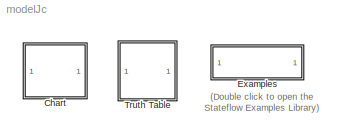
MODEL modelJc
KIND library
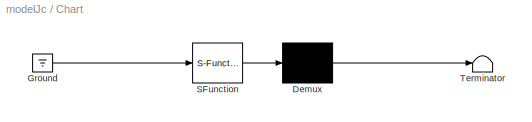
BLOCK [SubSystem] Chart
  FunctionWithSeparateData = off
  MaskDescription = Stateflow diagram
  MaskDisplay = plot(sf('Private','sfblk','xIcon'),sf('Private','sfblk','yIcon'));text(0.5,0,sf('Private', 'sfblk', 'tIcon'),'HorizontalAl','Center','VerticalAl','Bottom');
  MaskHideContents = off
  MaskIconFrame = off
  MaskIconOpaque = on
  MaskIconRotate = none
  MaskIconUnits = autoscale
  MaskPortRotate = default
  MaskSelfModifiable = on
  MaskType = Stateflow
  MinAlgLoopOccurrences = off
  Opaque = off
  PermitHierarchicalResolution = ExplicitOnly
  Ports = []
  PropExecContextOutsideSubsystem = off
  RTWSystemCode = Auto
  RequestExecContextInheritance = off
  SID = 1
  TreatAsAtomicUnit = on
BLOCK [Demux] Chart/ Demux 
  Outputs = 1
  Ports = [1, 1]
  SID = 10
BLOCK [Ground] Chart/ Ground 
  SID = 11
BLOCK [S-Function] Chart/ SFunction 
  EnableBusSupport = off
  FunctionName = sf_sfun
  PortCounts = [1 1]
  Ports = [1, 1]
  SID = 9
  Tag = Stateflow S-Function modelJc 1
BLOCK [Terminator] Chart/ Terminator 
  SID = 12
BLOCK [SubSystem] Examples
  FunctionWithSeparateData = off
  MaskDisplay = disp('Examples')
  MaskHideContents = off
  MaskIconFrame = on
  MaskIconOpaque = on
  MaskIconRotate = none
  MaskIconUnits = autoscale
  MaskPortRotate = default
  MinAlgLoopOccurrences = off
  Opaque = off
  OpenFcn = sf('Private','sf_examples')
  Ports = []
  PropExecContextOutsideSubsystem = off
  RTWSystemCode = Auto
  RequestExecContextInheritance = off
  SID = 2
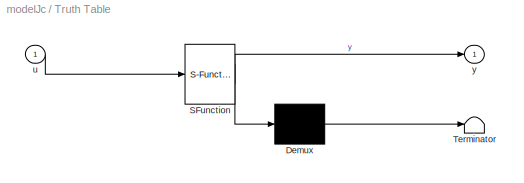
BLOCK [SubSystem] Truth Table
  FunctionWithSeparateData = off
  MaskDescription = Truth Table Block
  MaskDisplay = plot([0 0 1 1 0 NaN 0.36 0.64 0.64 0.36 0.36 NaN 0.5 0.5 NaN 0.36 0.64 NaN 0.406667 0.453333 NaN 0.43 0.43 NaN 0.546667 0.593333 NaN 0.546667 0.546667 NaN 0.546667 0.57 ], [0 1 1 0 0 NaN 0.36 0.36 0.64 0.64 0.36 NaN 0.36 0.64 NaN 0.546667 0.546667 NaN 0.5 0.5 NaN 0.406667 0.5 NaN 0.5 0.5 NaN 0.406667 0.5 NaN 0.453333 0.453333 ]);
  MaskHideContents = off
  MaskIconFrame = off
  MaskIconOpaque = off
  MaskIconRotate = none
  MaskIconUnits = autoscale
  MaskPortRotate = default
  MaskSelfModifiable = on
  MaskType = Stateflow
  MinAlgLoopOccurrences = off
  Opaque = off
  PermitHierarchicalResolution = ExplicitOnly
  Ports = [1, 1]
  PropExecContextOutsideSubsystem = off
  RTWSystemCode = Auto
  RequestExecContextInheritance = off
  SID = 3
  TreatAsAtomicUnit = on
BLOCK [Demux] Truth Table/ Demux 
  Outputs = 1
  Ports = [1, 1]
  SID = 11
BLOCK [S-Function] Truth Table/ SFunction 
  EnableBusSupport = off
  FunctionName = sf_sfun
  PortCounts = [1 2]
  Ports = [1, 2]
  SID = 10
  Tag = Stateflow S-Function modelJc 2
BLOCK [Terminator] Truth Table/ Terminator 
  SID = 13
BLOCK [Inport] Truth Table/u
  IconDisplay = Port number
  OutDataType = sfix(16)
  OutScaling = 2^0
  SID = 1
BLOCK [Outport] Truth Table/y
  IconDisplay = Port number
  OutDataType = sfix(16)
  OutScaling = 2^0
  SID = 5
ANNOTATION (root): (Double click to open the\nStateflow Examples Library)
LINE Chart/ Demux :1 -> Chart/ Terminator :1
LINE Chart/ Ground :1 -> Chart/ SFunction :1
LINE Chart/ SFunction :1 -> Chart/ Demux :1
LINE Truth Table/ Demux :1 -> Truth Table/ Terminator :1
LINE Truth Table/ SFunction :1 -> Truth Table/ Demux :1
LINE Truth Table/ SFunction :2 -> Truth Table/y:1
LINE Truth Table/u:1 -> Truth Table/ SFunction :1
CHART Chart states=0 transitions=0
CHART Truth Table states=1 transitions=1
  STATE_LABEL 'tt_blk_kernel'
